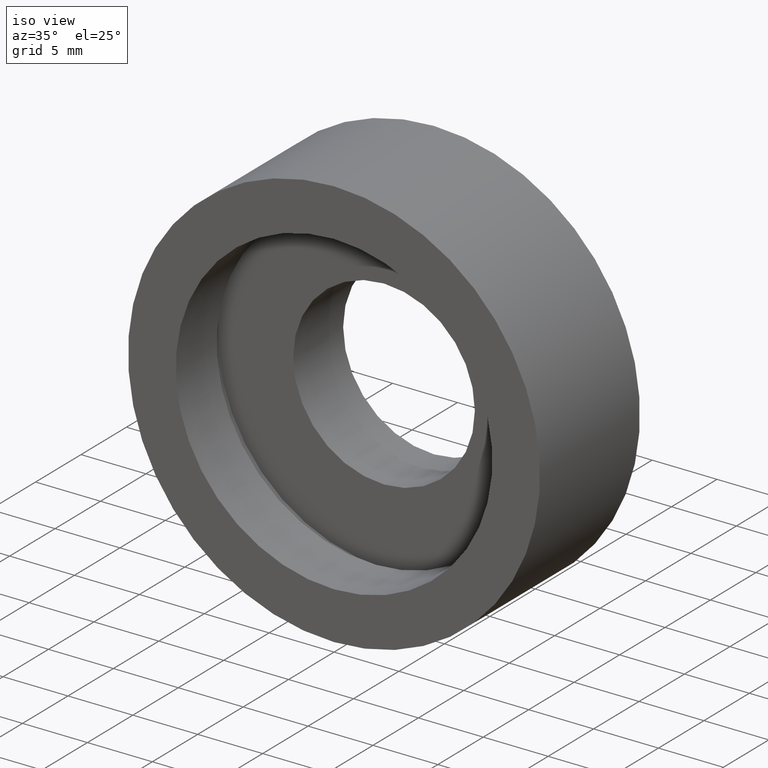
[diagram: clean part render]
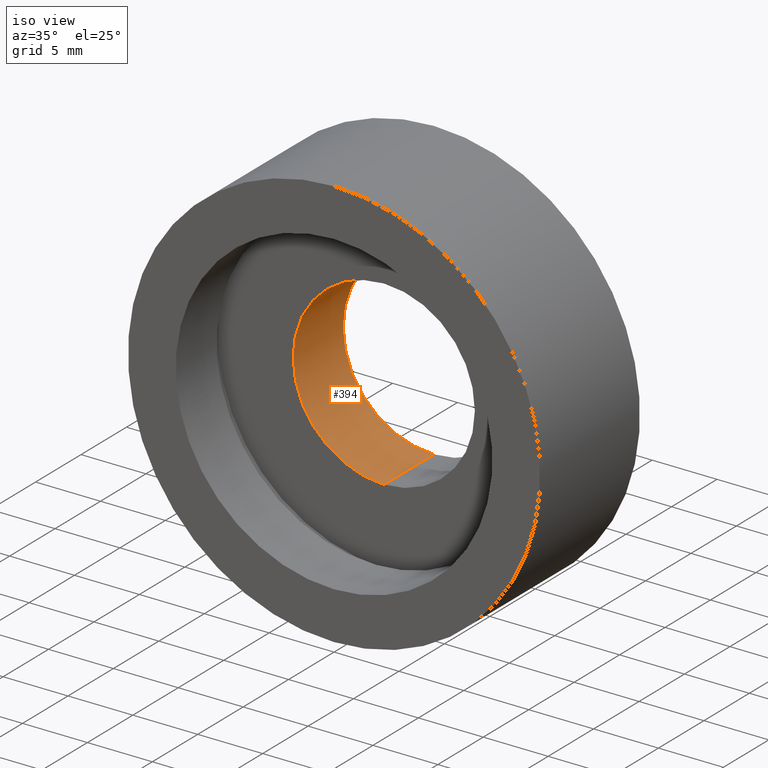
[diagram: same view with one face highlighted and labeled with its STEP entity id]
A machine part, iso view. The second image highlights one B-rep face of the part: STEP entity #394.
In plain terms, the highlighted cylindrical surface (partial cylindrical patch) has radius 7 mm, axis along (-0, 1, -0).
Its self-contained STEP definition (entity closure, byte-faithful):
#6 = CARTESIAN_POINT ( 'NONE',  ( 0.0000000000000000000, 10.99999999999999600, 0.0000000000000000000 ) ) ;
#12 = EDGE_CURVE ( 'NONE', #278, #142, #245, .T. ) ;
#18 = DIRECTION ( 'NONE',  ( 0.0000000000000000000, 0.0000000000000000000, 1.000000000000000000 ) ) ;
#23 = EDGE_CURVE ( 'NONE', #142, #312, #63, .T. ) ;
#37 = DIRECTION ( 'NONE',  ( -0.0000000000000000000, 1.000000000000000000, -0.0000000000000000000 ) ) ;
#53 = VECTOR ( 'NONE', #188, 1000.000000000000000 ) ;
#63 = CIRCLE ( 'NONE', #89, 7.000000000000007100 ) ;
#71 = ORIENTED_EDGE ( 'NONE', *, *, #314, .F. ) ;
#89 = AXIS2_PLACEMENT_3D ( 'NONE', #6, #122, #202 ) ;
#115 = CIRCLE ( 'NONE', #348, 7.000000000000006200 ) ;
#122 = DIRECTION ( 'NONE',  ( -0.0000000000000000000, 1.000000000000000000, -0.0000000000000000000 ) ) ;
#125 = DIRECTION ( 'NONE',  ( 0.0000000000000000000, 0.0000000000000000000, 1.000000000000000000 ) ) ;
#131 = CARTESIAN_POINT ( 'NONE',  ( 0.0000000000000000000, 60.02082041425541100, 7.000000000000006200 ) ) ;
#142 = VERTEX_POINT ( 'NONE', #262 ) ;
#145 = LINE ( 'NONE', #131, #53 ) ;
#176 = CARTESIAN_POINT ( 'NONE',  ( 0.0000000000000000000, 5.499999999999998200, 0.0000000000000000000 ) ) ;
#188 = DIRECTION ( 'NONE',  ( -0.0000000000000000000, 1.000000000000000000, -0.0000000000000000000 ) ) ;
#197 = CYLINDRICAL_SURFACE ( 'NONE', #214, 7.000000000000006200 ) ;
#202 = DIRECTION ( 'NONE',  ( 0.0000000000000000000, 0.0000000000000000000, 1.000000000000000000 ) ) ;
#214 = AXIS2_PLACEMENT_3D ( 'NONE', #419, #37, #18 ) ;
#223 = ORIENTED_EDGE ( 'NONE', *, *, #12, .T. ) ;
#233 = ORIENTED_EDGE ( 'NONE', *, *, #23, .T. ) ;
#245 = LINE ( 'NONE', #405, #430 ) ;
#262 = CARTESIAN_POINT ( 'NONE',  ( 8.572527594031482100E-016, 10.99999999999999600, -7.000000000000008000 ) ) ;
#275 = DIRECTION ( 'NONE',  ( -0.0000000000000000000, 1.000000000000000000, -0.0000000000000000000 ) ) ;
#278 = VERTEX_POINT ( 'NONE', #341 ) ;
#308 = DIRECTION ( 'NONE',  ( -0.0000000000000000000, 1.000000000000000000, -0.0000000000000000000 ) ) ;
#312 = VERTEX_POINT ( 'NONE', #379 ) ;
#313 = CARTESIAN_POINT ( 'NONE',  ( 0.0000000000000000000, 5.499999999999998200, 7.000000000000006200 ) ) ;
#314 = EDGE_CURVE ( 'NONE', #278, #386, #115, .T. ) ;
#323 = EDGE_CURVE ( 'NONE', #386, #312, #145, .T. ) ;
#325 = ORIENTED_EDGE ( 'NONE', *, *, #323, .F. ) ;
#341 = CARTESIAN_POINT ( 'NONE',  ( 8.572527594031480100E-016, 5.499999999999998200, -7.000000000000006200 ) ) ;
#348 = AXIS2_PLACEMENT_3D ( 'NONE', #176, #275, #125 ) ;
#361 = EDGE_LOOP ( 'NONE', ( #71, #223, #233, #325 ) ) ;
#379 = CARTESIAN_POINT ( 'NONE',  ( 0.0000000000000000000, 10.99999999999999600, 7.000000000000007100 ) ) ;
#386 = VERTEX_POINT ( 'NONE', #313 ) ;
#394 = ADVANCED_FACE ( 'NONE', ( #396 ), #197, .F. ) ;
#396 = FACE_OUTER_BOUND ( 'NONE', #361, .T. ) ;
#405 = CARTESIAN_POINT ( 'NONE',  ( 8.572527594031480100E-016, 60.02082041425541100, -7.000000000000006200 ) ) ;
#419 = CARTESIAN_POINT ( 'NONE',  ( 0.0000000000000000000, 60.02082041425541100, 0.0000000000000000000 ) ) ;
#430 = VECTOR ( 'NONE', #308, 1000.000000000000000 ) ;